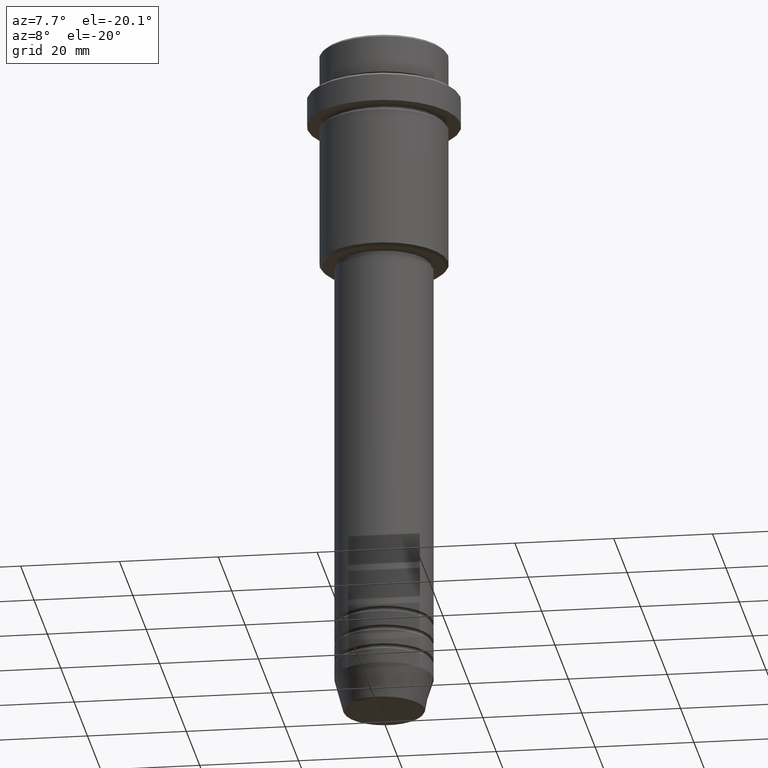
[diagram: clean part render]
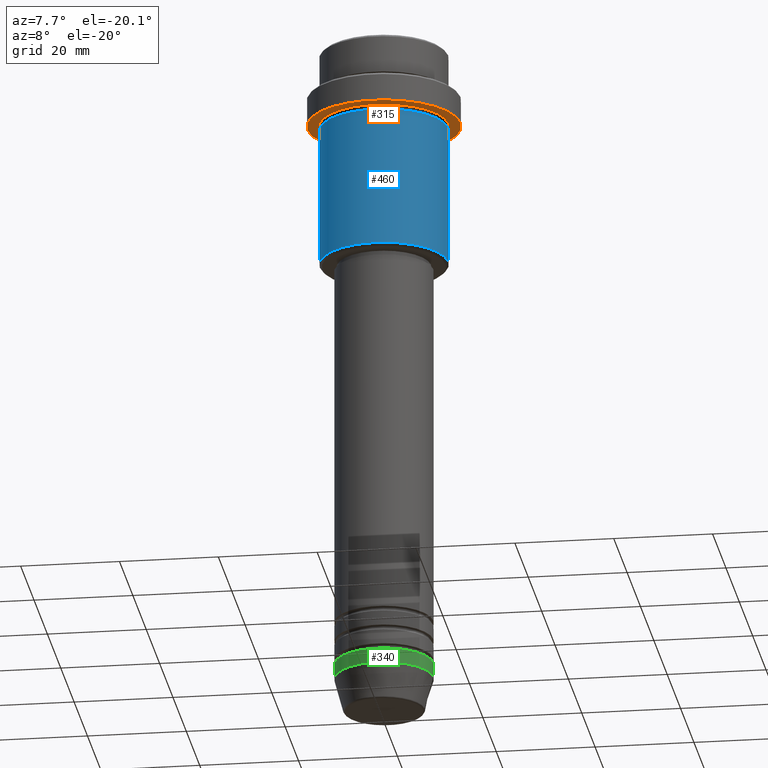
[diagram: same view with three faces highlighted in distinct colors, each labeled with its STEP entity id]
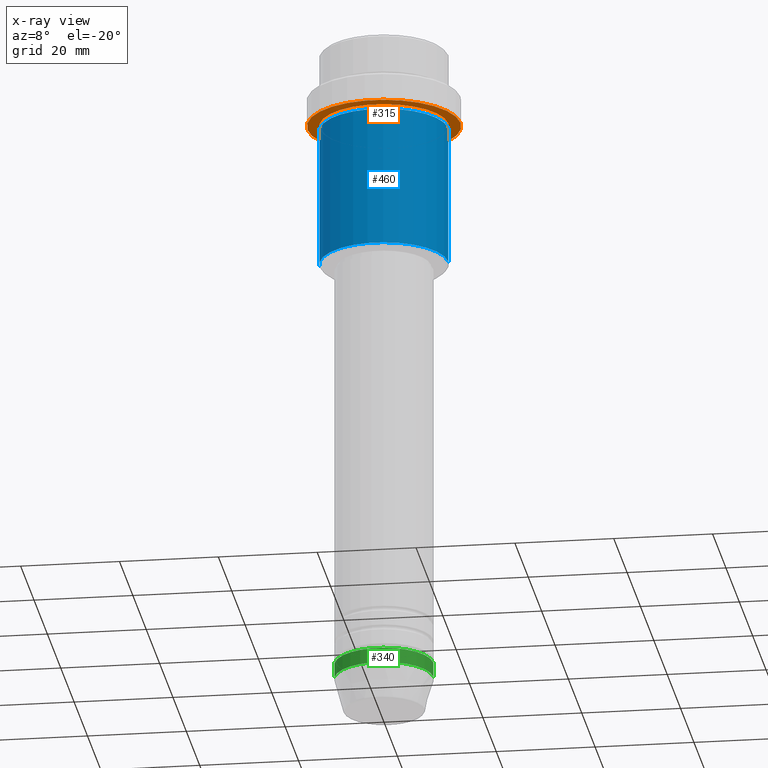
[diagram: x-ray of the same camera — body ghosted, the three highlighted faces saturated]
A machine part, auxiliary view with three faces highlighted in distinct colors.
The next image is the same camera in x-ray (body ghosted, the three faces saturated) — at least one of them is partly hidden behind the body in this view.
Their STEP definitions:

[orange] entity #315 — the highlighted planar face has unit normal (0, 0, -1).
#2 = CARTESIAN_POINT ( 'NONE',  ( 0.000000000000000000, 0.000000000000000000, -15.00000000000000000 ) ) ;
#33 = DIRECTION ( 'NONE',  ( -0.000000000000000000, -0.000000000000000000, 1.000000000000000000 ) ) ;
#81 = VERTEX_POINT ( 'NONE', #1409 ) ;
#96 = DIRECTION ( 'NONE',  ( 0.000000000000000000, 0.000000000000000000, -1.000000000000000000 ) ) ;
#102 = DIRECTION ( 'NONE',  ( -1.000000000000000000, 0.000000000000000000, -0.000000000000000000 ) ) ;
#114 = CARTESIAN_POINT ( 'NONE',  ( 0.000000000000000000, 0.000000000000000000, -15.00000000000000000 ) ) ;
#201 = CARTESIAN_POINT ( 'NONE',  ( 12.99999999999999645, 1.592040838891558701E-15, -15.00000000000000000 ) ) ;
#221 = DIRECTION ( 'NONE',  ( 1.000000000000000000, 0.000000000000000000, 0.000000000000000000 ) ) ;
#258 = CARTESIAN_POINT ( 'NONE',  ( 0.000000000000000000, 0.000000000000000000, -15.00000000000000000 ) ) ;
#304 = CARTESIAN_POINT ( 'NONE',  ( 0.000000000000000000, 15.50000000000000000, -15.00000000000000000 ) ) ;
#311 = DIRECTION ( 'NONE',  ( -0.000000000000000000, -0.000000000000000000, 1.000000000000000000 ) ) ;
#315 = ADVANCED_FACE ( 'NONE', ( #761, #1078 ), #1207, .T. ) ;
#316 = AXIS2_PLACEMENT_3D ( 'NONE', #1206, #311, #1199 ) ;
#317 = AXIS2_PLACEMENT_3D ( 'NONE', #114, #1082, #984 ) ;
#337 = CIRCLE ( 'NONE', #316, 15.50000000000000000 ) ;
#366 = EDGE_LOOP ( 'NONE', ( #837, #1327 ) ) ;
#373 = VERTEX_POINT ( 'NONE', #943 ) ;
#600 = ORIENTED_EDGE ( 'NONE', *, *, #1001, .T. ) ;
#635 = CIRCLE ( 'NONE', #1030, 12.99999999999999645 ) ;
#708 = EDGE_CURVE ( 'NONE', #1057, #81, #337, .T. ) ;
#761 = FACE_BOUND ( 'NONE', #1056, .T. ) ;
#774 = CIRCLE ( 'NONE', #884, 15.50000000000000000 ) ;
#795 = AXIS2_PLACEMENT_3D ( 'NONE', #304, #96, #102 ) ;
#837 = ORIENTED_EDGE ( 'NONE', *, *, #925, .F. ) ;
#884 = AXIS2_PLACEMENT_3D ( 'NONE', #2, #971, #221 ) ;
#912 = DIRECTION ( 'NONE',  ( -1.000000000000000000, 0.000000000000000000, 0.000000000000000000 ) ) ;
#925 = EDGE_CURVE ( 'NONE', #81, #1057, #774, .T. ) ;
#943 = CARTESIAN_POINT ( 'NONE',  ( -12.99999999999999645, 0.000000000000000000, -15.00000000000000000 ) ) ;
#959 = CIRCLE ( 'NONE', #317, 12.99999999999999645 ) ;
#971 = DIRECTION ( 'NONE',  ( -0.000000000000000000, -0.000000000000000000, 1.000000000000000000 ) ) ;
#984 = DIRECTION ( 'NONE',  ( -1.000000000000000000, 0.000000000000000000, 0.000000000000000000 ) ) ;
#1001 = EDGE_CURVE ( 'NONE', #1416, #373, #959, .T. ) ;
#1005 = ORIENTED_EDGE ( 'NONE', *, *, #1205, .T. ) ;
#1030 = AXIS2_PLACEMENT_3D ( 'NONE', #258, #33, #912 ) ;
#1056 = EDGE_LOOP ( 'NONE', ( #1005, #600 ) ) ;
#1057 = VERTEX_POINT ( 'NONE', #1376 ) ;
#1078 = FACE_OUTER_BOUND ( 'NONE', #366, .T. ) ;
#1082 = DIRECTION ( 'NONE',  ( -0.000000000000000000, -0.000000000000000000, 1.000000000000000000 ) ) ;
#1199 = DIRECTION ( 'NONE',  ( 1.000000000000000000, 0.000000000000000000, 0.000000000000000000 ) ) ;
#1205 = EDGE_CURVE ( 'NONE', #373, #1416, #635, .T. ) ;
#1206 = CARTESIAN_POINT ( 'NONE',  ( 0.000000000000000000, 0.000000000000000000, -15.00000000000000000 ) ) ;
#1207 = PLANE ( 'NONE',  #795 ) ;
#1327 = ORIENTED_EDGE ( 'NONE', *, *, #708, .F. ) ;
#1376 = CARTESIAN_POINT ( 'NONE',  ( -15.50000000000000000, 1.898202538678397557E-15, -15.00000000000000000 ) ) ;
#1409 = CARTESIAN_POINT ( 'NONE',  ( 15.50000000000000000, 0.000000000000000000, -15.00000000000000000 ) ) ;
#1416 = VERTEX_POINT ( 'NONE', #201 ) ;

[blue] entity #460 — the highlighted cylindrical surface (partial cylindrical patch) has radius 13 mm, axis along (-0, -0, 1).
#65 = VECTOR ( 'NONE', #344, 1000.000000000000000 ) ;
#86 = AXIS2_PLACEMENT_3D ( 'NONE', #1298, #213, #1066 ) ;
#200 = CARTESIAN_POINT ( 'NONE',  ( 0.000000000000000000, 0.000000000000000000, -44.50000000000002842 ) ) ;
#213 = DIRECTION ( 'NONE',  ( -0.000000000000000000, -0.000000000000000000, 1.000000000000000000 ) ) ;
#272 = CARTESIAN_POINT ( 'NONE',  ( 13.00000000000000000, 0.000000000000000000, -16.00000000000000000 ) ) ;
#313 = DIRECTION ( 'NONE',  ( -0.000000000000000000, -0.000000000000000000, 1.000000000000000000 ) ) ;
#344 = DIRECTION ( 'NONE',  ( -0.000000000000000000, -0.000000000000000000, 1.000000000000000000 ) ) ;
#362 = EDGE_CURVE ( 'NONE', #687, #872, #1310, .T. ) ;
#371 = EDGE_CURVE ( 'NONE', #1364, #687, #1119, .T. ) ;
#407 = CYLINDRICAL_SURFACE ( 'NONE', #86, 13.00000000000000000 ) ;
#428 = VERTEX_POINT ( 'NONE', #1104 ) ;
#447 = LINE ( 'NONE', #877, #65 ) ;
#460 = ADVANCED_FACE ( 'NONE', ( #1197 ), #407, .T. ) ;
#500 = DIRECTION ( 'NONE',  ( -0.000000000000000000, -0.000000000000000000, 1.000000000000000000 ) ) ;
#516 = ORIENTED_EDGE ( 'NONE', *, *, #362, .T. ) ;
#522 = DIRECTION ( 'NONE',  ( -0.000000000000000000, -0.000000000000000000, 1.000000000000000000 ) ) ;
#545 = EDGE_CURVE ( 'NONE', #1364, #428, #447, .T. ) ;
#646 = DIRECTION ( 'NONE',  ( -1.000000000000000000, 0.000000000000000000, 0.000000000000000000 ) ) ;
#682 = ORIENTED_EDGE ( 'NONE', *, *, #371, .T. ) ;
#687 = VERTEX_POINT ( 'NONE', #695 ) ;
#695 = CARTESIAN_POINT ( 'NONE',  ( 13.00000000000000000, 0.000000000000000000, -44.50000000000002842 ) ) ;
#737 = CIRCLE ( 'NONE', #822, 13.00000000000000000 ) ;
#755 = AXIS2_PLACEMENT_3D ( 'NONE', #200, #522, #646 ) ;
#822 = AXIS2_PLACEMENT_3D ( 'NONE', #1324, #500, #923 ) ;
#872 = VERTEX_POINT ( 'NONE', #272 ) ;
#877 = CARTESIAN_POINT ( 'NONE',  ( -13.00000000000000000, 1.592040838891559095E-15, 0.000000000000000000 ) ) ;
#923 = DIRECTION ( 'NONE',  ( 1.000000000000000000, 0.000000000000000000, 0.000000000000000000 ) ) ;
#955 = ORIENTED_EDGE ( 'NONE', *, *, #1034, .F. ) ;
#1034 = EDGE_CURVE ( 'NONE', #428, #872, #737, .T. ) ;
#1066 = DIRECTION ( 'NONE',  ( 1.000000000000000000, 0.000000000000000000, 0.000000000000000000 ) ) ;
#1104 = CARTESIAN_POINT ( 'NONE',  ( -13.00000000000000000, 1.592040838891559095E-15, -16.00000000000000000 ) ) ;
#1119 = CIRCLE ( 'NONE', #755, 13.00000000000000000 ) ;
#1170 = ORIENTED_EDGE ( 'NONE', *, *, #545, .F. ) ;
#1184 = CARTESIAN_POINT ( 'NONE',  ( 13.00000000000000000, 0.000000000000000000, 0.000000000000000000 ) ) ;
#1189 = EDGE_LOOP ( 'NONE', ( #1170, #682, #516, #955 ) ) ;
#1197 = FACE_OUTER_BOUND ( 'NONE', #1189, .T. ) ;
#1244 = VECTOR ( 'NONE', #313, 1000.000000000000000 ) ;
#1298 = CARTESIAN_POINT ( 'NONE',  ( 0.000000000000000000, 0.000000000000000000, 0.000000000000000000 ) ) ;
#1310 = LINE ( 'NONE', #1184, #1244 ) ;
#1324 = CARTESIAN_POINT ( 'NONE',  ( 0.000000000000000000, 0.000000000000000000, -16.00000000000000000 ) ) ;
#1331 = CARTESIAN_POINT ( 'NONE',  ( -13.00000000000000000, 1.592040838891559095E-15, -44.50000000000002842 ) ) ;
#1364 = VERTEX_POINT ( 'NONE', #1331 ) ;

[green] entity #340 — the highlighted cylindrical surface (partial cylindrical patch) has radius 10 mm, axis along (-0, -0, 1).
#20 = LINE ( 'NONE', #125, #1408 ) ;
#30 = CARTESIAN_POINT ( 'NONE',  ( -10.00000000000000000, 1.224646799147353256E-15, 0.000000000000000000 ) ) ;
#75 = VERTEX_POINT ( 'NONE', #416 ) ;
#80 = CYLINDRICAL_SURFACE ( 'NONE', #1381, 10.00000000000000000 ) ;
#87 = CARTESIAN_POINT ( 'NONE',  ( 0.000000000000000000, 0.000000000000000000, 0.000000000000000000 ) ) ;
#92 = VERTEX_POINT ( 'NONE', #324 ) ;
#119 = DIRECTION ( 'NONE',  ( -0.000000000000000000, -0.000000000000000000, 1.000000000000000000 ) ) ;
#125 = CARTESIAN_POINT ( 'NONE',  ( 10.00000000000000000, 0.000000000000000000, 0.000000000000000000 ) ) ;
#172 = EDGE_CURVE ( 'NONE', #92, #1136, #647, .T. ) ;
#222 = CARTESIAN_POINT ( 'NONE',  ( 0.000000000000000000, 0.000000000000000000, -130.0000000000000000 ) ) ;
#281 = EDGE_CURVE ( 'NONE', #618, #75, #536, .T. ) ;
#324 = CARTESIAN_POINT ( 'NONE',  ( -10.00000000000000000, 1.224646799147353256E-15, -133.0000000000000000 ) ) ;
#340 = ADVANCED_FACE ( 'NONE', ( #852 ), #80, .T. ) ;
#409 = VECTOR ( 'NONE', #892, 1000.000000000000000 ) ;
#416 = CARTESIAN_POINT ( 'NONE',  ( 10.00000000000000000, 0.000000000000000000, -130.0000000000000000 ) ) ;
#437 = ORIENTED_EDGE ( 'NONE', *, *, #281, .F. ) ;
#492 = EDGE_CURVE ( 'NONE', #92, #618, #556, .T. ) ;
#531 = EDGE_CURVE ( 'NONE', #1136, #75, #20, .T. ) ;
#536 = CIRCLE ( 'NONE', #977, 10.00000000000000000 ) ;
#538 = DIRECTION ( 'NONE',  ( 1.000000000000000000, 0.000000000000000000, 0.000000000000000000 ) ) ;
#556 = LINE ( 'NONE', #30, #409 ) ;
#602 = AXIS2_PLACEMENT_3D ( 'NONE', #831, #1022, #935 ) ;
#618 = VERTEX_POINT ( 'NONE', #685 ) ;
#647 = CIRCLE ( 'NONE', #602, 10.00000000000000000 ) ;
#652 = DIRECTION ( 'NONE',  ( -0.000000000000000000, -0.000000000000000000, 1.000000000000000000 ) ) ;
#685 = CARTESIAN_POINT ( 'NONE',  ( -10.00000000000000000, 1.224646799147353256E-15, -130.0000000000000000 ) ) ;
#739 = DIRECTION ( 'NONE',  ( -0.000000000000000000, -0.000000000000000000, 1.000000000000000000 ) ) ;
#742 = CARTESIAN_POINT ( 'NONE',  ( 10.00000000000000000, 0.000000000000000000, -133.0000000000000000 ) ) ;
#812 = ORIENTED_EDGE ( 'NONE', *, *, #172, .T. ) ;
#831 = CARTESIAN_POINT ( 'NONE',  ( 0.000000000000000000, 0.000000000000000000, -133.0000000000000000 ) ) ;
#841 = EDGE_LOOP ( 'NONE', ( #1361, #812, #1278, #437 ) ) ;
#852 = FACE_OUTER_BOUND ( 'NONE', #841, .T. ) ;
#892 = DIRECTION ( 'NONE',  ( -0.000000000000000000, -0.000000000000000000, 1.000000000000000000 ) ) ;
#935 = DIRECTION ( 'NONE',  ( 1.000000000000000000, 0.000000000000000000, 0.000000000000000000 ) ) ;
#977 = AXIS2_PLACEMENT_3D ( 'NONE', #222, #739, #1320 ) ;
#1022 = DIRECTION ( 'NONE',  ( -0.000000000000000000, -0.000000000000000000, 1.000000000000000000 ) ) ;
#1136 = VERTEX_POINT ( 'NONE', #742 ) ;
#1278 = ORIENTED_EDGE ( 'NONE', *, *, #531, .T. ) ;
#1320 = DIRECTION ( 'NONE',  ( 1.000000000000000000, 0.000000000000000000, 0.000000000000000000 ) ) ;
#1361 = ORIENTED_EDGE ( 'NONE', *, *, #492, .F. ) ;
#1381 = AXIS2_PLACEMENT_3D ( 'NONE', #87, #652, #538 ) ;
#1408 = VECTOR ( 'NONE', #119, 1000.000000000000000 ) ;